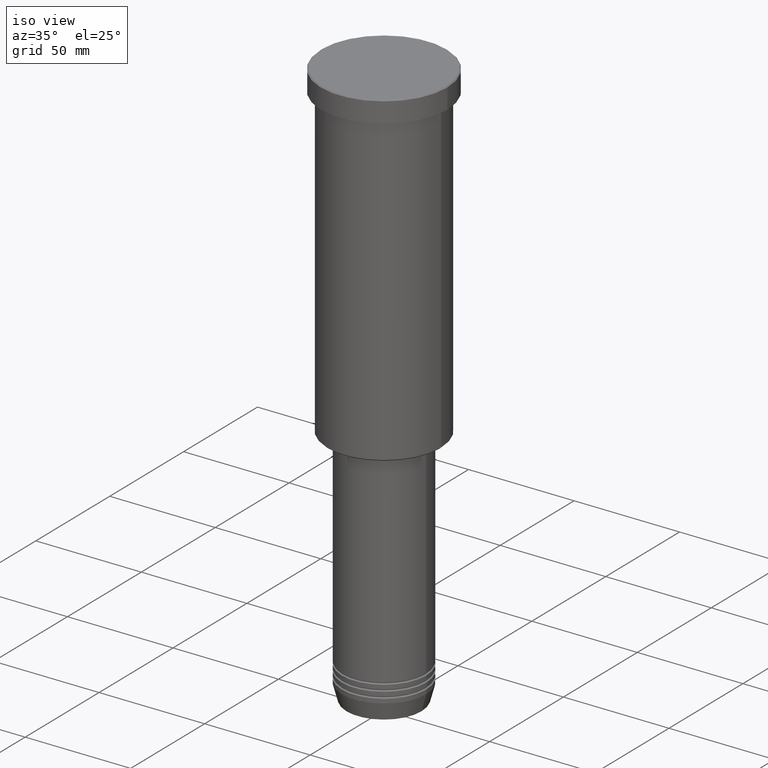
[diagram: clean part render]
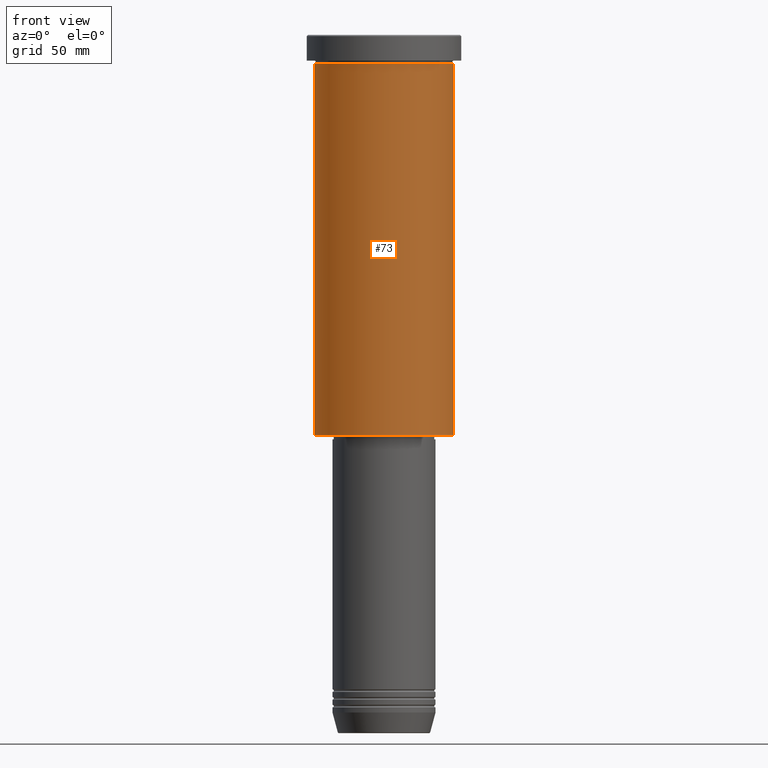
[diagram: tour spotlight — one face highlighted and labeled with its STEP entity id]
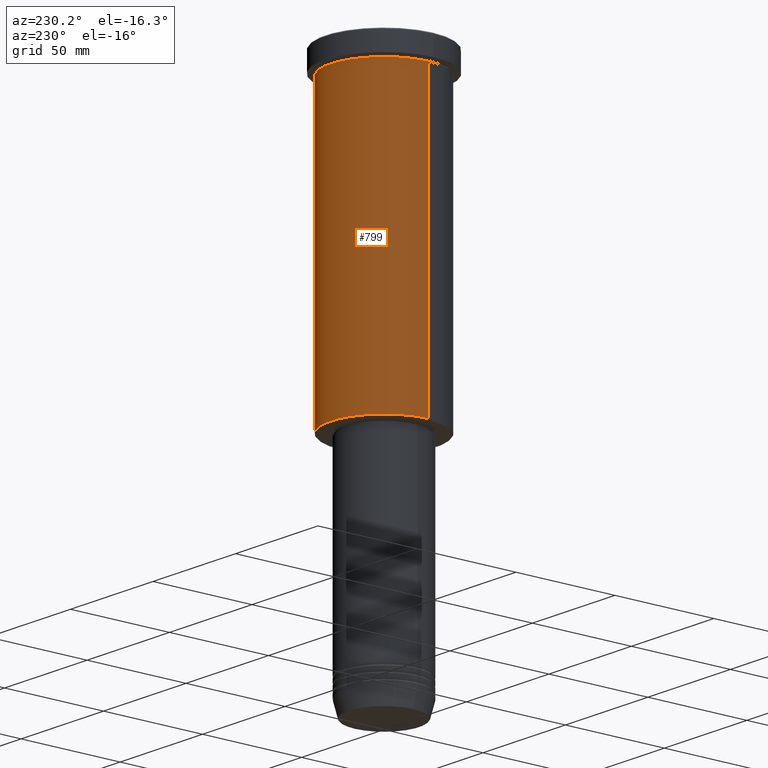
[diagram: tour spotlight — one face highlighted and labeled with its STEP entity id]
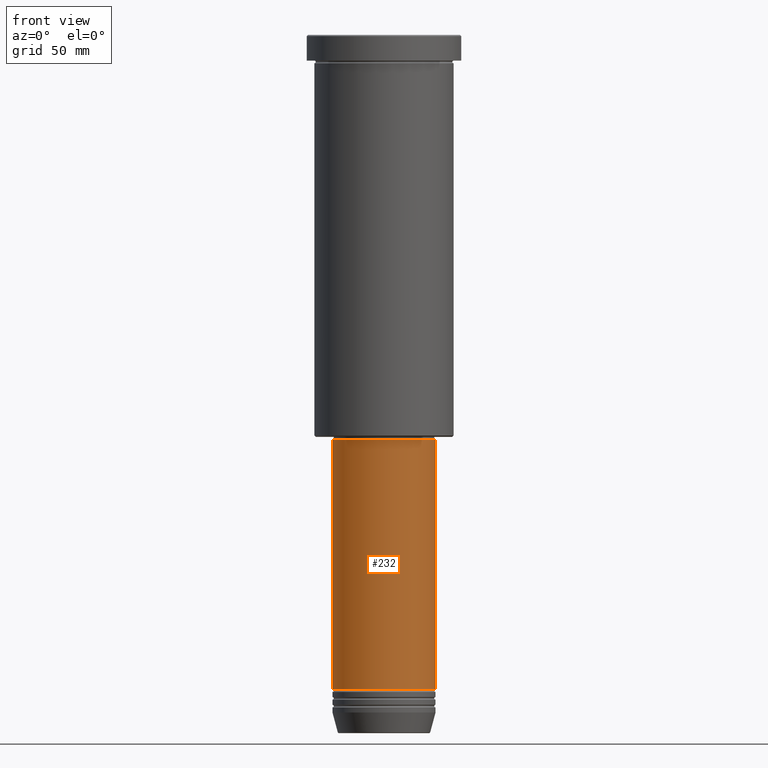
[diagram: tour spotlight — one face highlighted and labeled with its STEP entity id]
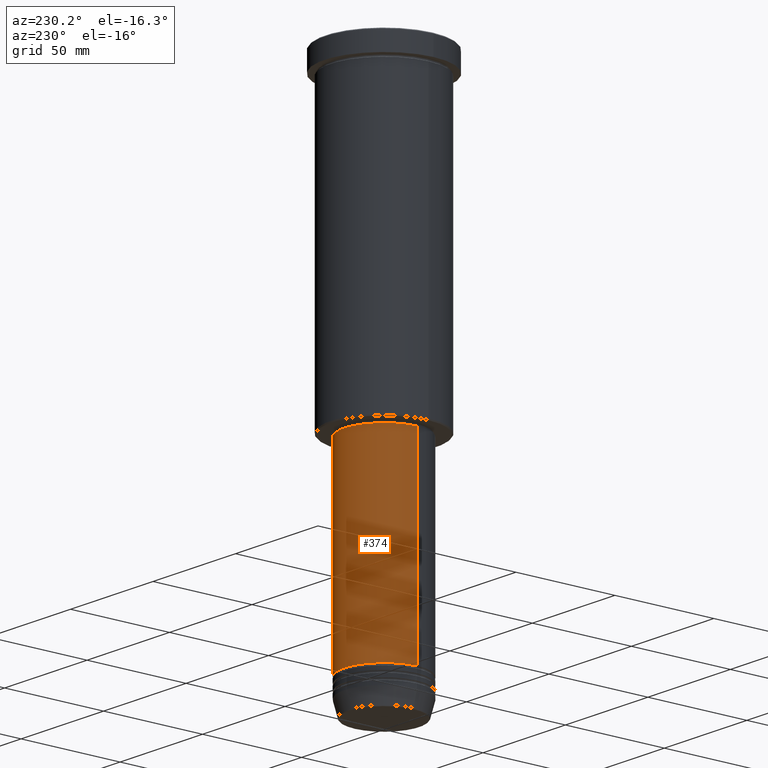
[diagram: tour spotlight — one face highlighted and labeled with its STEP entity id]
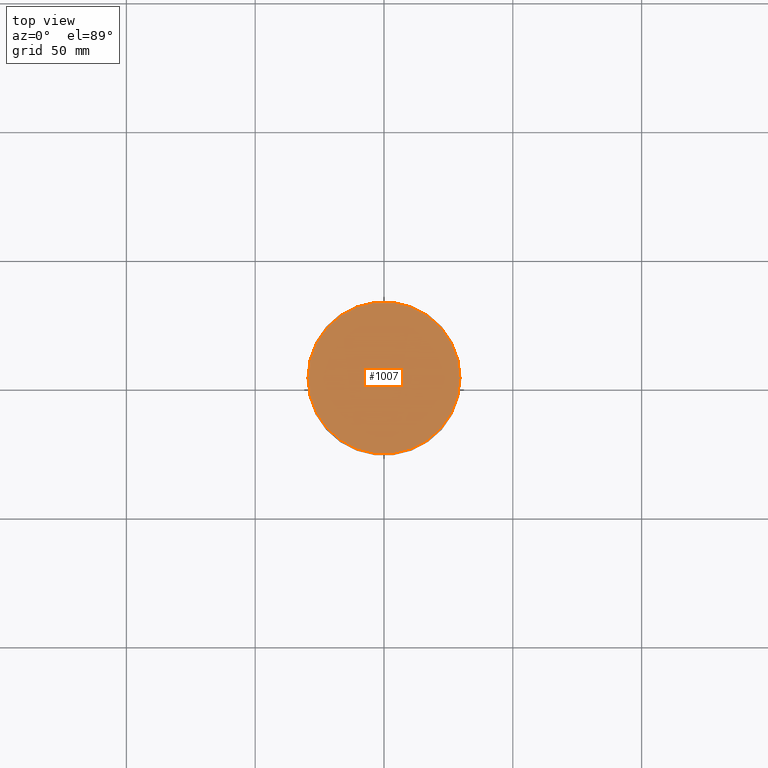
[diagram: tour spotlight — one face highlighted and labeled with its STEP entity id]
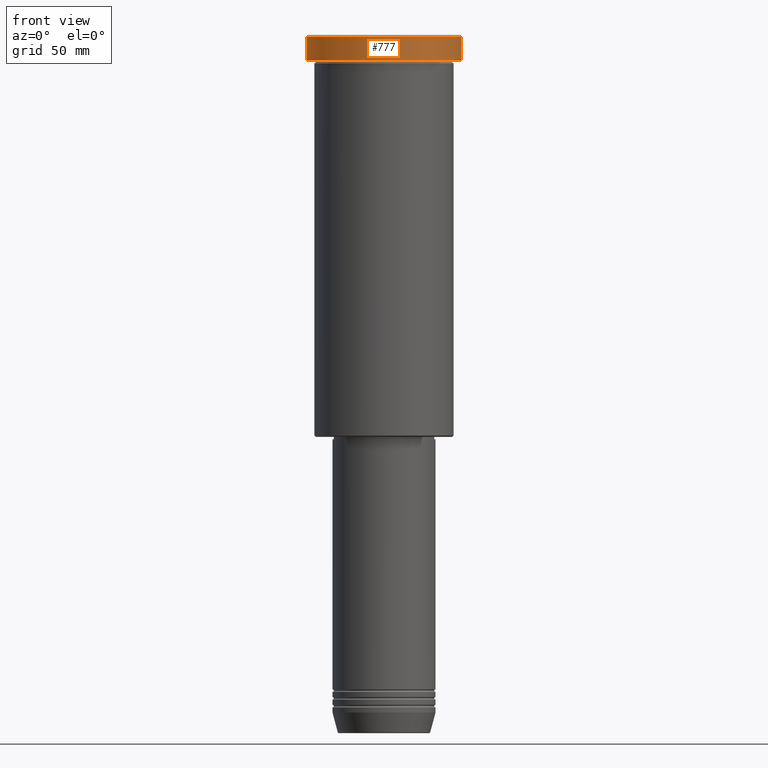
[diagram: tour spotlight — one face highlighted and labeled with its STEP entity id]
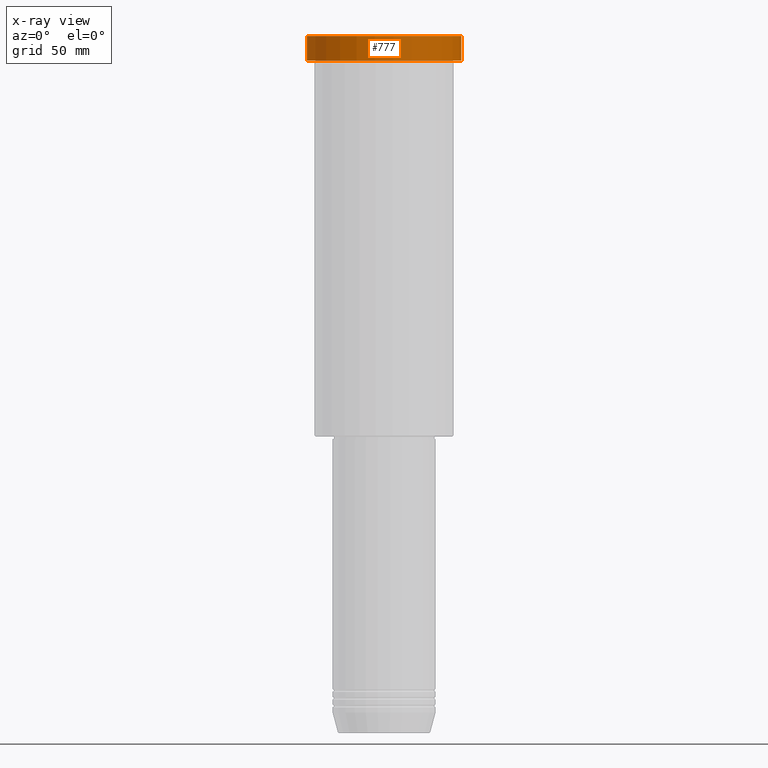
[diagram: x-ray of the same camera — body ghosted, this tour face saturated]
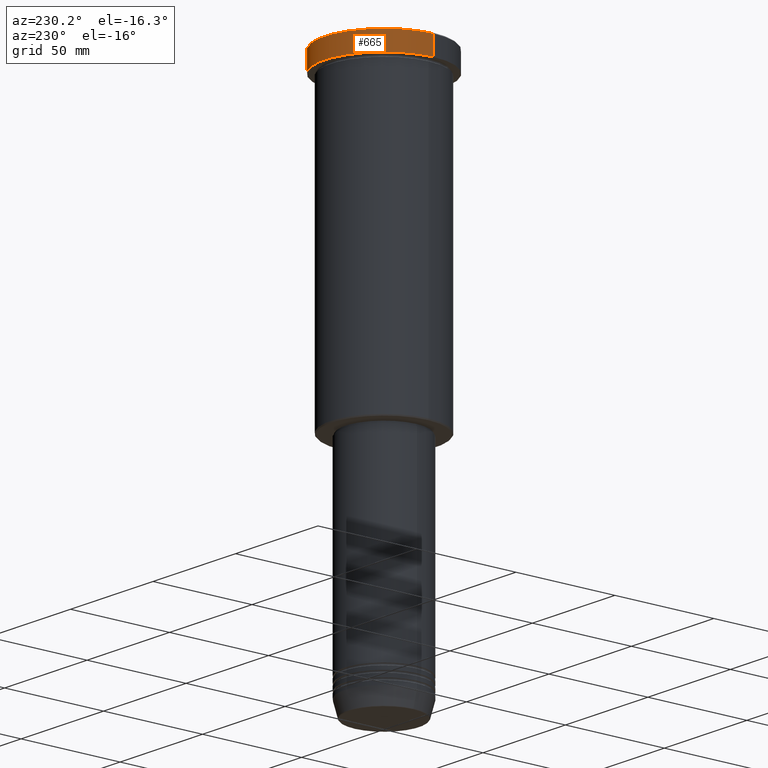
[diagram: tour spotlight — one face highlighted and labeled with its STEP entity id]
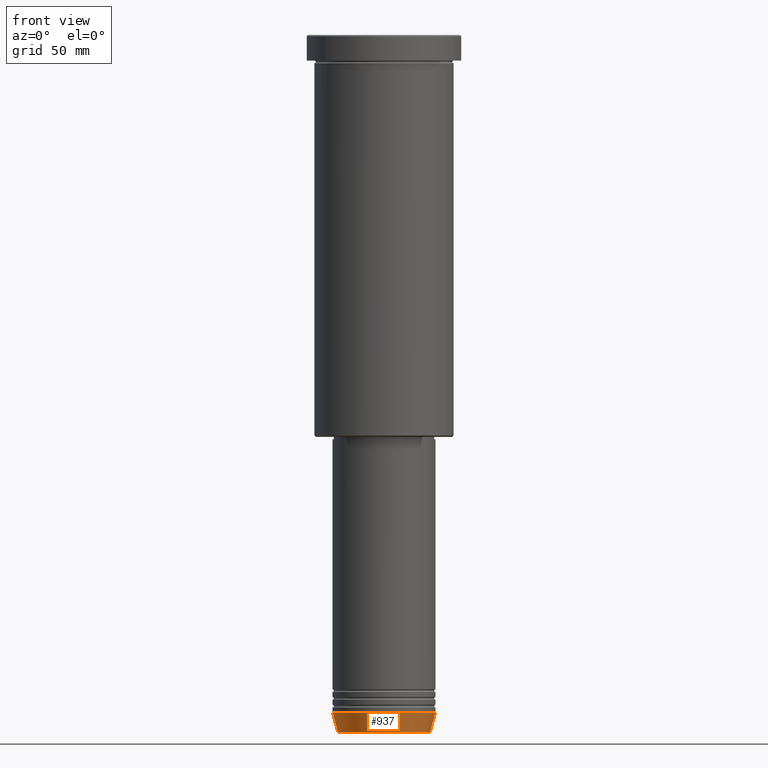
[diagram: tour spotlight — one face highlighted and labeled with its STEP entity id]
A machine part: a face-by-face anatomy tour. The part has 43 B-rep faces; the first image is the clean iso view, then the 8 largest visible faces are spotlighted one at a time (largest first), each with its STEP entity span.

Face 1 — front view, entity #73. In plain terms, the highlighted cylindrical surface (partial cylindrical patch) has radius 27 mm, axis along (-0, -0, 1).
Definition (entity closure, byte-faithful):
#14 = DIRECTION ( 'NONE',  ( 1.000000000000000000, 0.000000000000000000, 0.000000000000000000 ) ) ;
#18 = ORIENTED_EDGE ( 'NONE', *, *, #1065, .F. ) ;
#63 = VERTEX_POINT ( 'NONE', #609 ) ;
#73 = ADVANCED_FACE ( 'NONE', ( #980 ), #868, .T. ) ;
#78 = CARTESIAN_POINT ( 'NONE',  ( -27.00000000000000355, 3.306546357697854128E-15, -155.5000000000000000 ) ) ;
#79 = EDGE_CURVE ( 'NONE', #1001, #491, #775, .T. ) ;
#84 = AXIS2_PLACEMENT_3D ( 'NONE', #694, #1060, #327 ) ;
#200 = CIRCLE ( 'NONE', #864, 27.00000000000000355 ) ;
#205 = CARTESIAN_POINT ( 'NONE',  ( 0.000000000000000000, 0.000000000000000000, -10.99999999999999289 ) ) ;
#322 = CARTESIAN_POINT ( 'NONE',  ( 0.000000000000000000, 0.000000000000000000, -155.5000000000000000 ) ) ;
#327 = DIRECTION ( 'NONE',  ( 1.000000000000000000, 0.000000000000000000, 0.000000000000000000 ) ) ;
#331 = ORIENTED_EDGE ( 'NONE', *, *, #761, .T. ) ;
#383 = DIRECTION ( 'NONE',  ( -0.000000000000000000, -0.000000000000000000, 1.000000000000000000 ) ) ;
#408 = DIRECTION ( 'NONE',  ( -0.000000000000000000, -0.000000000000000000, 1.000000000000000000 ) ) ;
#447 = CARTESIAN_POINT ( 'NONE',  ( 27.00000000000000355, 0.000000000000000000, -10.99999999999999289 ) ) ;
#450 = VECTOR ( 'NONE', #383, 1000.000000000000000 ) ;
#463 = DIRECTION ( 'NONE',  ( -0.000000000000000000, -0.000000000000000000, 1.000000000000000000 ) ) ;
#481 = VERTEX_POINT ( 'NONE', #78 ) ;
#491 = VERTEX_POINT ( 'NONE', #447 ) ;
#496 = DIRECTION ( 'NONE',  ( -1.000000000000000000, 0.000000000000000000, 0.000000000000000000 ) ) ;
#555 = LINE ( 'NONE', #930, #450 ) ;
#609 = CARTESIAN_POINT ( 'NONE',  ( -27.00000000000000355, 3.306546357697854128E-15, -10.99999999999999289 ) ) ;
#611 = CARTESIAN_POINT ( 'NONE',  ( 27.00000000000000355, 0.000000000000000000, -155.5000000000000000 ) ) ;
#660 = CIRCLE ( 'NONE', #1091, 27.00000000000000355 ) ;
#672 = VECTOR ( 'NONE', #780, 1000.000000000000000 ) ;
#694 = CARTESIAN_POINT ( 'NONE',  ( 0.000000000000000000, 0.000000000000000000, 0.000000000000000000 ) ) ;
#700 = EDGE_CURVE ( 'NONE', #63, #491, #200, .T. ) ;
#761 = EDGE_CURVE ( 'NONE', #481, #1001, #660, .T. ) ;
#775 = LINE ( 'NONE', #1162, #672 ) ;
#780 = DIRECTION ( 'NONE',  ( -0.000000000000000000, -0.000000000000000000, 1.000000000000000000 ) ) ;
#850 = ORIENTED_EDGE ( 'NONE', *, *, #700, .F. ) ;
#864 = AXIS2_PLACEMENT_3D ( 'NONE', #205, #463, #14 ) ;
#868 = CYLINDRICAL_SURFACE ( 'NONE', #84, 27.00000000000000355 ) ;
#930 = CARTESIAN_POINT ( 'NONE',  ( -27.00000000000000355, 3.306546357697854128E-15, 0.000000000000000000 ) ) ;
#980 = FACE_OUTER_BOUND ( 'NONE', #1138, .T. ) ;
#982 = ORIENTED_EDGE ( 'NONE', *, *, #79, .T. ) ;
#1001 = VERTEX_POINT ( 'NONE', #611 ) ;
#1060 = DIRECTION ( 'NONE',  ( -0.000000000000000000, -0.000000000000000000, 1.000000000000000000 ) ) ;
#1065 = EDGE_CURVE ( 'NONE', #481, #63, #555, .T. ) ;
#1091 = AXIS2_PLACEMENT_3D ( 'NONE', #322, #408, #496 ) ;
#1138 = EDGE_LOOP ( 'NONE', ( #18, #331, #982, #850 ) ) ;
#1162 = CARTESIAN_POINT ( 'NONE',  ( 27.00000000000000355, 0.000000000000000000, 0.000000000000000000 ) ) ;

Face 2 — auxiliary view, entity #799. In plain terms, the highlighted cylindrical surface (partial cylindrical patch) has radius 27 mm, axis along (-0, -0, 1).
Definition (entity closure, byte-faithful):
#63 = VERTEX_POINT ( 'NONE', #609 ) ;
#78 = CARTESIAN_POINT ( 'NONE',  ( -27.00000000000000355, 3.306546357697854128E-15, -155.5000000000000000 ) ) ;
#79 = EDGE_CURVE ( 'NONE', #1001, #491, #775, .T. ) ;
#167 = AXIS2_PLACEMENT_3D ( 'NONE', #1137, #599, #764 ) ;
#234 = ORIENTED_EDGE ( 'NONE', *, *, #79, .F. ) ;
#235 = AXIS2_PLACEMENT_3D ( 'NONE', #1049, #1149, #333 ) ;
#312 = CYLINDRICAL_SURFACE ( 'NONE', #167, 27.00000000000000355 ) ;
#318 = EDGE_CURVE ( 'NONE', #1001, #481, #1050, .T. ) ;
#333 = DIRECTION ( 'NONE',  ( 1.000000000000000000, 0.000000000000000000, 0.000000000000000000 ) ) ;
#338 = DIRECTION ( 'NONE',  ( -1.000000000000000000, 0.000000000000000000, 0.000000000000000000 ) ) ;
#383 = DIRECTION ( 'NONE',  ( -0.000000000000000000, -0.000000000000000000, 1.000000000000000000 ) ) ;
#392 = ORIENTED_EDGE ( 'NONE', *, *, #413, .F. ) ;
#413 = EDGE_CURVE ( 'NONE', #491, #63, #750, .T. ) ;
#416 = DIRECTION ( 'NONE',  ( -0.000000000000000000, -0.000000000000000000, 1.000000000000000000 ) ) ;
#420 = EDGE_LOOP ( 'NONE', ( #809, #969, #392, #234 ) ) ;
#446 = AXIS2_PLACEMENT_3D ( 'NONE', #516, #416, #338 ) ;
#447 = CARTESIAN_POINT ( 'NONE',  ( 27.00000000000000355, 0.000000000000000000, -10.99999999999999289 ) ) ;
#450 = VECTOR ( 'NONE', #383, 1000.000000000000000 ) ;
#481 = VERTEX_POINT ( 'NONE', #78 ) ;
#491 = VERTEX_POINT ( 'NONE', #447 ) ;
#516 = CARTESIAN_POINT ( 'NONE',  ( 0.000000000000000000, 0.000000000000000000, -155.5000000000000000 ) ) ;
#555 = LINE ( 'NONE', #930, #450 ) ;
#599 = DIRECTION ( 'NONE',  ( -0.000000000000000000, -0.000000000000000000, 1.000000000000000000 ) ) ;
#609 = CARTESIAN_POINT ( 'NONE',  ( -27.00000000000000355, 3.306546357697854128E-15, -10.99999999999999289 ) ) ;
#611 = CARTESIAN_POINT ( 'NONE',  ( 27.00000000000000355, 0.000000000000000000, -155.5000000000000000 ) ) ;
#672 = VECTOR ( 'NONE', #780, 1000.000000000000000 ) ;
#750 = CIRCLE ( 'NONE', #235, 27.00000000000000355 ) ;
#764 = DIRECTION ( 'NONE',  ( 1.000000000000000000, 0.000000000000000000, 0.000000000000000000 ) ) ;
#775 = LINE ( 'NONE', #1162, #672 ) ;
#780 = DIRECTION ( 'NONE',  ( -0.000000000000000000, -0.000000000000000000, 1.000000000000000000 ) ) ;
#799 = ADVANCED_FACE ( 'NONE', ( #860 ), #312, .T. ) ;
#809 = ORIENTED_EDGE ( 'NONE', *, *, #318, .T. ) ;
#860 = FACE_OUTER_BOUND ( 'NONE', #420, .T. ) ;
#930 = CARTESIAN_POINT ( 'NONE',  ( -27.00000000000000355, 3.306546357697854128E-15, 0.000000000000000000 ) ) ;
#969 = ORIENTED_EDGE ( 'NONE', *, *, #1065, .T. ) ;
#1001 = VERTEX_POINT ( 'NONE', #611 ) ;
#1049 = CARTESIAN_POINT ( 'NONE',  ( 0.000000000000000000, 0.000000000000000000, -10.99999999999999289 ) ) ;
#1050 = CIRCLE ( 'NONE', #446, 27.00000000000000355 ) ;
#1065 = EDGE_CURVE ( 'NONE', #481, #63, #555, .T. ) ;
#1137 = CARTESIAN_POINT ( 'NONE',  ( 0.000000000000000000, 0.000000000000000000, 0.000000000000000000 ) ) ;
#1149 = DIRECTION ( 'NONE',  ( -0.000000000000000000, -0.000000000000000000, 1.000000000000000000 ) ) ;
#1162 = CARTESIAN_POINT ( 'NONE',  ( 27.00000000000000355, 0.000000000000000000, 0.000000000000000000 ) ) ;

Face 3 — front view, entity #232. In plain terms, the highlighted cylindrical surface (partial cylindrical patch) has radius 20 mm, axis along (-0, -0, 1).
Definition (entity closure, byte-faithful):
#10 = DIRECTION ( 'NONE',  ( -0.000000000000000000, -0.000000000000000000, 1.000000000000000000 ) ) ;
#22 = EDGE_CURVE ( 'NONE', #488, #179, #121, .T. ) ;
#72 = ORIENTED_EDGE ( 'NONE', *, *, #22, .F. ) ;
#89 = CYLINDRICAL_SURFACE ( 'NONE', #989, 20.00000000000000000 ) ;
#121 = CIRCLE ( 'NONE', #784, 20.00000000000000000 ) ;
#132 = EDGE_CURVE ( 'NONE', #300, #179, #645, .T. ) ;
#147 = EDGE_CURVE ( 'NONE', #211, #488, #729, .T. ) ;
#171 = CARTESIAN_POINT ( 'NONE',  ( -20.00000000000000000, 2.449293598294706513E-15, -157.0000000000000000 ) ) ;
#173 = FACE_OUTER_BOUND ( 'NONE', #208, .T. ) ;
#179 = VERTEX_POINT ( 'NONE', #811 ) ;
#184 = DIRECTION ( 'NONE',  ( 1.000000000000000000, 0.000000000000000000, 0.000000000000000000 ) ) ;
#208 = EDGE_LOOP ( 'NONE', ( #671, #305, #1062, #72 ) ) ;
#211 = VERTEX_POINT ( 'NONE', #724 ) ;
#232 = ADVANCED_FACE ( 'NONE', ( #173 ), #89, .T. ) ;
#300 = VERTEX_POINT ( 'NONE', #324 ) ;
#305 = ORIENTED_EDGE ( 'NONE', *, *, #867, .T. ) ;
#324 = CARTESIAN_POINT ( 'NONE',  ( 20.00000000000000000, 0.000000000000000000, -254.0000000000000000 ) ) ;
#346 = DIRECTION ( 'NONE',  ( -0.000000000000000000, -0.000000000000000000, 1.000000000000000000 ) ) ;
#348 = DIRECTION ( 'NONE',  ( -0.000000000000000000, -0.000000000000000000, 1.000000000000000000 ) ) ;
#369 = VECTOR ( 'NONE', #1090, 1000.000000000000000 ) ;
#460 = CARTESIAN_POINT ( 'NONE',  ( 20.00000000000000000, 0.000000000000000000, 0.000000000000000000 ) ) ;
#488 = VERTEX_POINT ( 'NONE', #171 ) ;
#645 = LINE ( 'NONE', #460, #863 ) ;
#671 = ORIENTED_EDGE ( 'NONE', *, *, #147, .F. ) ;
#713 = DIRECTION ( 'NONE',  ( 1.000000000000000000, 0.000000000000000000, 0.000000000000000000 ) ) ;
#724 = CARTESIAN_POINT ( 'NONE',  ( -20.00000000000000000, 2.449293598294706513E-15, -254.0000000000000000 ) ) ;
#729 = LINE ( 'NONE', #985, #369 ) ;
#784 = AXIS2_PLACEMENT_3D ( 'NONE', #1168, #346, #713 ) ;
#811 = CARTESIAN_POINT ( 'NONE',  ( 20.00000000000000000, 0.000000000000000000, -157.0000000000000000 ) ) ;
#863 = VECTOR ( 'NONE', #10, 1000.000000000000000 ) ;
#867 = EDGE_CURVE ( 'NONE', #211, #300, #923, .T. ) ;
#923 = CIRCLE ( 'NONE', #1093, 20.00000000000000000 ) ;
#985 = CARTESIAN_POINT ( 'NONE',  ( -20.00000000000000000, 2.449293598294706513E-15, 0.000000000000000000 ) ) ;
#989 = AXIS2_PLACEMENT_3D ( 'NONE', #1175, #991, #184 ) ;
#991 = DIRECTION ( 'NONE',  ( -0.000000000000000000, -0.000000000000000000, 1.000000000000000000 ) ) ;
#1062 = ORIENTED_EDGE ( 'NONE', *, *, #132, .T. ) ;
#1084 = DIRECTION ( 'NONE',  ( 1.000000000000000000, 0.000000000000000000, 0.000000000000000000 ) ) ;
#1090 = DIRECTION ( 'NONE',  ( -0.000000000000000000, -0.000000000000000000, 1.000000000000000000 ) ) ;
#1093 = AXIS2_PLACEMENT_3D ( 'NONE', #1177, #348, #1084 ) ;
#1168 = CARTESIAN_POINT ( 'NONE',  ( 0.000000000000000000, 0.000000000000000000, -157.0000000000000000 ) ) ;
#1175 = CARTESIAN_POINT ( 'NONE',  ( 0.000000000000000000, 0.000000000000000000, 0.000000000000000000 ) ) ;
#1177 = CARTESIAN_POINT ( 'NONE',  ( 0.000000000000000000, 0.000000000000000000, -254.0000000000000000 ) ) ;

Face 4 — auxiliary view, entity #374. In plain terms, the highlighted cylindrical surface (partial cylindrical patch) has radius 20 mm, axis along (-0, -0, 1).
Definition (entity closure, byte-faithful):
#7 = CIRCLE ( 'NONE', #273, 20.00000000000000000 ) ;
#10 = DIRECTION ( 'NONE',  ( -0.000000000000000000, -0.000000000000000000, 1.000000000000000000 ) ) ;
#65 = CYLINDRICAL_SURFACE ( 'NONE', #1109, 20.00000000000000000 ) ;
#127 = AXIS2_PLACEMENT_3D ( 'NONE', #1157, #606, #964 ) ;
#130 = ORIENTED_EDGE ( 'NONE', *, *, #815, .T. ) ;
#132 = EDGE_CURVE ( 'NONE', #300, #179, #645, .T. ) ;
#147 = EDGE_CURVE ( 'NONE', #211, #488, #729, .T. ) ;
#150 = ORIENTED_EDGE ( 'NONE', *, *, #276, .F. ) ;
#171 = CARTESIAN_POINT ( 'NONE',  ( -20.00000000000000000, 2.449293598294706513E-15, -157.0000000000000000 ) ) ;
#179 = VERTEX_POINT ( 'NONE', #811 ) ;
#211 = VERTEX_POINT ( 'NONE', #724 ) ;
#227 = DIRECTION ( 'NONE',  ( 1.000000000000000000, 0.000000000000000000, 0.000000000000000000 ) ) ;
#231 = FACE_OUTER_BOUND ( 'NONE', #1019, .T. ) ;
#250 = CARTESIAN_POINT ( 'NONE',  ( 0.000000000000000000, 0.000000000000000000, 0.000000000000000000 ) ) ;
#273 = AXIS2_PLACEMENT_3D ( 'NONE', #704, #319, #227 ) ;
#276 = EDGE_CURVE ( 'NONE', #179, #488, #7, .T. ) ;
#300 = VERTEX_POINT ( 'NONE', #324 ) ;
#319 = DIRECTION ( 'NONE',  ( -0.000000000000000000, -0.000000000000000000, 1.000000000000000000 ) ) ;
#324 = CARTESIAN_POINT ( 'NONE',  ( 20.00000000000000000, 0.000000000000000000, -254.0000000000000000 ) ) ;
#369 = VECTOR ( 'NONE', #1090, 1000.000000000000000 ) ;
#374 = ADVANCED_FACE ( 'NONE', ( #231 ), #65, .T. ) ;
#460 = CARTESIAN_POINT ( 'NONE',  ( 20.00000000000000000, 0.000000000000000000, 0.000000000000000000 ) ) ;
#488 = VERTEX_POINT ( 'NONE', #171 ) ;
#528 = ORIENTED_EDGE ( 'NONE', *, *, #132, .F. ) ;
#606 = DIRECTION ( 'NONE',  ( -0.000000000000000000, -0.000000000000000000, 1.000000000000000000 ) ) ;
#645 = LINE ( 'NONE', #460, #863 ) ;
#704 = CARTESIAN_POINT ( 'NONE',  ( 0.000000000000000000, 0.000000000000000000, -157.0000000000000000 ) ) ;
#724 = CARTESIAN_POINT ( 'NONE',  ( -20.00000000000000000, 2.449293598294706513E-15, -254.0000000000000000 ) ) ;
#729 = LINE ( 'NONE', #985, #369 ) ;
#811 = CARTESIAN_POINT ( 'NONE',  ( 20.00000000000000000, 0.000000000000000000, -157.0000000000000000 ) ) ;
#815 = EDGE_CURVE ( 'NONE', #300, #211, #1174, .T. ) ;
#856 = DIRECTION ( 'NONE',  ( 1.000000000000000000, 0.000000000000000000, 0.000000000000000000 ) ) ;
#863 = VECTOR ( 'NONE', #10, 1000.000000000000000 ) ;
#952 = ORIENTED_EDGE ( 'NONE', *, *, #147, .T. ) ;
#964 = DIRECTION ( 'NONE',  ( 1.000000000000000000, 0.000000000000000000, 0.000000000000000000 ) ) ;
#985 = CARTESIAN_POINT ( 'NONE',  ( -20.00000000000000000, 2.449293598294706513E-15, 0.000000000000000000 ) ) ;
#1019 = EDGE_LOOP ( 'NONE', ( #130, #952, #150, #528 ) ) ;
#1090 = DIRECTION ( 'NONE',  ( -0.000000000000000000, -0.000000000000000000, 1.000000000000000000 ) ) ;
#1109 = AXIS2_PLACEMENT_3D ( 'NONE', #250, #1139, #856 ) ;
#1139 = DIRECTION ( 'NONE',  ( -0.000000000000000000, -0.000000000000000000, 1.000000000000000000 ) ) ;
#1157 = CARTESIAN_POINT ( 'NONE',  ( 0.000000000000000000, 0.000000000000000000, -254.0000000000000000 ) ) ;
#1174 = CIRCLE ( 'NONE', #127, 20.00000000000000000 ) ;

Face 5 — top view, entity #1007. In plain terms, the highlighted planar face has unit normal (0, -0, 1).
Definition (entity closure, byte-faithful):
#94 = DIRECTION ( 'NONE',  ( -0.000000000000000000, -0.000000000000000000, 1.000000000000000000 ) ) ;
#99 = DIRECTION ( 'NONE',  ( 1.000000000000000000, 0.000000000000000000, 0.000000000000000000 ) ) ;
#116 = DIRECTION ( 'NONE',  ( 1.000000000000000000, 0.000000000000000000, 0.000000000000000000 ) ) ;
#213 = ORIENTED_EDGE ( 'NONE', *, *, #590, .T. ) ;
#238 = VERTEX_POINT ( 'NONE', #913 ) ;
#242 = EDGE_CURVE ( 'NONE', #1056, #238, #919, .T. ) ;
#307 = AXIS2_PLACEMENT_3D ( 'NONE', #487, #759, #1023 ) ;
#424 = EDGE_LOOP ( 'NONE', ( #213, #512 ) ) ;
#433 = CARTESIAN_POINT ( 'NONE',  ( 0.000000000000000000, 0.000000000000000000, 0.000000000000000000 ) ) ;
#482 = AXIS2_PLACEMENT_3D ( 'NONE', #908, #94, #99 ) ;
#487 = CARTESIAN_POINT ( 'NONE',  ( 0.000000000000000000, 0.000000000000000000, 0.000000000000000000 ) ) ;
#512 = ORIENTED_EDGE ( 'NONE', *, *, #242, .T. ) ;
#520 = FACE_OUTER_BOUND ( 'NONE', #424, .T. ) ;
#590 = EDGE_CURVE ( 'NONE', #238, #1056, #940, .T. ) ;
#759 = DIRECTION ( 'NONE',  ( -0.000000000000000000, -0.000000000000000000, 1.000000000000000000 ) ) ;
#834 = CARTESIAN_POINT ( 'NONE',  ( 29.50000000000002487, 3.643324227463376968E-15, 0.000000000000000000 ) ) ;
#887 = PLANE ( 'NONE',  #905 ) ;
#905 = AXIS2_PLACEMENT_3D ( 'NONE', #433, #1098, #116 ) ;
#908 = CARTESIAN_POINT ( 'NONE',  ( 0.000000000000000000, 0.000000000000000000, 0.000000000000000000 ) ) ;
#913 = CARTESIAN_POINT ( 'NONE',  ( -29.50000000000002487, 0.000000000000000000, 0.000000000000000000 ) ) ;
#919 = CIRCLE ( 'NONE', #482, 29.50000000000002487 ) ;
#940 = CIRCLE ( 'NONE', #307, 29.50000000000002487 ) ;
#1007 = ADVANCED_FACE ( 'NONE', ( #520 ), #887, .T. ) ;
#1023 = DIRECTION ( 'NONE',  ( 1.000000000000000000, 0.000000000000000000, 0.000000000000000000 ) ) ;
#1056 = VERTEX_POINT ( 'NONE', #834 ) ;
#1098 = DIRECTION ( 'NONE',  ( 0.000000000000000000, -0.000000000000000000, 1.000000000000000000 ) ) ;

Face 6 — front view, entity #777. An x-ray twin of the same camera follows (body ghosted, this face saturated) — the face is partly hidden behind the body. In plain terms, the highlighted cylindrical surface (partial cylindrical patch) has radius 30 mm, axis along (-0, -0, 1).
Definition (entity closure, byte-faithful):
#8 = EDGE_CURVE ( 'NONE', #401, #758, #557, .T. ) ;
#41 = AXIS2_PLACEMENT_3D ( 'NONE', #168, #526, #701 ) ;
#53 = CARTESIAN_POINT ( 'NONE',  ( -30.00000000000000000, 3.673940397442059178E-15, -9.999999999999992895 ) ) ;
#155 = CARTESIAN_POINT ( 'NONE',  ( 0.000000000000000000, 0.000000000000000000, -0.4999999999999796274 ) ) ;
#168 = CARTESIAN_POINT ( 'NONE',  ( 0.000000000000000000, 0.000000000000000000, -9.999999999999992895 ) ) ;
#296 = CARTESIAN_POINT ( 'NONE',  ( -30.00000000000000000, 3.673940397442059178E-15, 0.000000000000000000 ) ) ;
#385 = LINE ( 'NONE', #296, #1151 ) ;
#387 = AXIS2_PLACEMENT_3D ( 'NONE', #155, #425, #696 ) ;
#399 = VERTEX_POINT ( 'NONE', #421 ) ;
#400 = DIRECTION ( 'NONE',  ( -0.000000000000000000, -0.000000000000000000, 1.000000000000000000 ) ) ;
#401 = VERTEX_POINT ( 'NONE', #53 ) ;
#418 = VERTEX_POINT ( 'NONE', #699 ) ;
#421 = CARTESIAN_POINT ( 'NONE',  ( -30.00000000000000000, 3.673940397442059178E-15, -0.4999999999999796274 ) ) ;
#425 = DIRECTION ( 'NONE',  ( 0.000000000000000000, 0.000000000000000000, -1.000000000000000000 ) ) ;
#494 = EDGE_CURVE ( 'NONE', #758, #418, #727, .T. ) ;
#513 = CARTESIAN_POINT ( 'NONE',  ( 30.00000000000000000, 0.000000000000000000, -9.999999999999992895 ) ) ;
#526 = DIRECTION ( 'NONE',  ( -0.000000000000000000, -0.000000000000000000, 1.000000000000000000 ) ) ;
#557 = CIRCLE ( 'NONE', #41, 30.00000000000000000 ) ;
#577 = CIRCLE ( 'NONE', #387, 30.00000000000000000 ) ;
#587 = CYLINDRICAL_SURFACE ( 'NONE', #1114, 30.00000000000000000 ) ;
#591 = ORIENTED_EDGE ( 'NONE', *, *, #8, .T. ) ;
#610 = EDGE_CURVE ( 'NONE', #401, #399, #385, .T. ) ;
#644 = CARTESIAN_POINT ( 'NONE',  ( 30.00000000000000000, 0.000000000000000000, 0.000000000000000000 ) ) ;
#669 = ORIENTED_EDGE ( 'NONE', *, *, #610, .F. ) ;
#688 = FACE_OUTER_BOUND ( 'NONE', #1111, .T. ) ;
#696 = DIRECTION ( 'NONE',  ( 1.000000000000000000, 0.000000000000000000, 0.000000000000000000 ) ) ;
#699 = CARTESIAN_POINT ( 'NONE',  ( 30.00000000000000000, 0.000000000000000000, -0.4999999999999796274 ) ) ;
#701 = DIRECTION ( 'NONE',  ( 1.000000000000000000, 0.000000000000000000, 0.000000000000000000 ) ) ;
#727 = LINE ( 'NONE', #644, #883 ) ;
#728 = EDGE_CURVE ( 'NONE', #418, #399, #577, .T. ) ;
#741 = DIRECTION ( 'NONE',  ( -0.000000000000000000, -0.000000000000000000, 1.000000000000000000 ) ) ;
#758 = VERTEX_POINT ( 'NONE', #513 ) ;
#771 = ORIENTED_EDGE ( 'NONE', *, *, #494, .T. ) ;
#777 = ADVANCED_FACE ( 'NONE', ( #688 ), #587, .T. ) ;
#883 = VECTOR ( 'NONE', #1002, 1000.000000000000000 ) ;
#948 = DIRECTION ( 'NONE',  ( 1.000000000000000000, 0.000000000000000000, 0.000000000000000000 ) ) ;
#1002 = DIRECTION ( 'NONE',  ( -0.000000000000000000, -0.000000000000000000, 1.000000000000000000 ) ) ;
#1047 = CARTESIAN_POINT ( 'NONE',  ( 0.000000000000000000, 0.000000000000000000, 0.000000000000000000 ) ) ;
#1064 = ORIENTED_EDGE ( 'NONE', *, *, #728, .T. ) ;
#1111 = EDGE_LOOP ( 'NONE', ( #669, #591, #771, #1064 ) ) ;
#1114 = AXIS2_PLACEMENT_3D ( 'NONE', #1047, #400, #948 ) ;
#1151 = VECTOR ( 'NONE', #741, 1000.000000000000000 ) ;

Face 7 — auxiliary view, entity #665. In plain terms, the highlighted cylindrical surface (partial cylindrical patch) has radius 30 mm, axis along (-0, -0, 1).
Definition (entity closure, byte-faithful):
#28 = CYLINDRICAL_SURFACE ( 'NONE', #257, 30.00000000000000000 ) ;
#53 = CARTESIAN_POINT ( 'NONE',  ( -30.00000000000000000, 3.673940397442059178E-15, -9.999999999999992895 ) ) ;
#135 = DIRECTION ( 'NONE',  ( 0.000000000000000000, 0.000000000000000000, -1.000000000000000000 ) ) ;
#237 = CIRCLE ( 'NONE', #902, 30.00000000000000000 ) ;
#243 = ORIENTED_EDGE ( 'NONE', *, *, #708, .T. ) ;
#257 = AXIS2_PLACEMENT_3D ( 'NONE', #827, #391, #290 ) ;
#286 = CARTESIAN_POINT ( 'NONE',  ( 0.000000000000000000, 0.000000000000000000, -9.999999999999992895 ) ) ;
#290 = DIRECTION ( 'NONE',  ( 1.000000000000000000, 0.000000000000000000, 0.000000000000000000 ) ) ;
#296 = CARTESIAN_POINT ( 'NONE',  ( -30.00000000000000000, 3.673940397442059178E-15, 0.000000000000000000 ) ) ;
#384 = ORIENTED_EDGE ( 'NONE', *, *, #494, .F. ) ;
#385 = LINE ( 'NONE', #296, #1151 ) ;
#391 = DIRECTION ( 'NONE',  ( -0.000000000000000000, -0.000000000000000000, 1.000000000000000000 ) ) ;
#399 = VERTEX_POINT ( 'NONE', #421 ) ;
#401 = VERTEX_POINT ( 'NONE', #53 ) ;
#418 = VERTEX_POINT ( 'NONE', #699 ) ;
#421 = CARTESIAN_POINT ( 'NONE',  ( -30.00000000000000000, 3.673940397442059178E-15, -0.4999999999999796274 ) ) ;
#494 = EDGE_CURVE ( 'NONE', #758, #418, #727, .T. ) ;
#513 = CARTESIAN_POINT ( 'NONE',  ( 30.00000000000000000, 0.000000000000000000, -9.999999999999992895 ) ) ;
#541 = AXIS2_PLACEMENT_3D ( 'NONE', #880, #135, #1055 ) ;
#610 = EDGE_CURVE ( 'NONE', #401, #399, #385, .T. ) ;
#644 = CARTESIAN_POINT ( 'NONE',  ( 30.00000000000000000, 0.000000000000000000, 0.000000000000000000 ) ) ;
#665 = ADVANCED_FACE ( 'NONE', ( #916 ), #28, .T. ) ;
#699 = CARTESIAN_POINT ( 'NONE',  ( 30.00000000000000000, 0.000000000000000000, -0.4999999999999796274 ) ) ;
#708 = EDGE_CURVE ( 'NONE', #758, #401, #237, .T. ) ;
#727 = LINE ( 'NONE', #644, #883 ) ;
#737 = EDGE_CURVE ( 'NONE', #399, #418, #1051, .T. ) ;
#741 = DIRECTION ( 'NONE',  ( -0.000000000000000000, -0.000000000000000000, 1.000000000000000000 ) ) ;
#746 = DIRECTION ( 'NONE',  ( -0.000000000000000000, -0.000000000000000000, 1.000000000000000000 ) ) ;
#758 = VERTEX_POINT ( 'NONE', #513 ) ;
#827 = CARTESIAN_POINT ( 'NONE',  ( 0.000000000000000000, 0.000000000000000000, 0.000000000000000000 ) ) ;
#880 = CARTESIAN_POINT ( 'NONE',  ( 0.000000000000000000, 0.000000000000000000, -0.4999999999999796274 ) ) ;
#883 = VECTOR ( 'NONE', #1002, 1000.000000000000000 ) ;
#902 = AXIS2_PLACEMENT_3D ( 'NONE', #286, #746, #1101 ) ;
#915 = ORIENTED_EDGE ( 'NONE', *, *, #737, .T. ) ;
#916 = FACE_OUTER_BOUND ( 'NONE', #1120, .T. ) ;
#1002 = DIRECTION ( 'NONE',  ( -0.000000000000000000, -0.000000000000000000, 1.000000000000000000 ) ) ;
#1051 = CIRCLE ( 'NONE', #541, 30.00000000000000000 ) ;
#1055 = DIRECTION ( 'NONE',  ( 1.000000000000000000, 0.000000000000000000, 0.000000000000000000 ) ) ;
#1101 = DIRECTION ( 'NONE',  ( 1.000000000000000000, 0.000000000000000000, 0.000000000000000000 ) ) ;
#1120 = EDGE_LOOP ( 'NONE', ( #243, #1127, #915, #384 ) ) ;
#1127 = ORIENTED_EDGE ( 'NONE', *, *, #610, .T. ) ;
#1151 = VECTOR ( 'NONE', #741, 1000.000000000000000 ) ;

Face 8 — front view, entity #937. In plain terms, the highlighted conical surface has half-angle 15 deg.
Definition (entity closure, byte-faithful):
#47 = CONICAL_SURFACE ( 'NONE', #466, 20.00000000000000000, 0.2617993877991499629 ) ;
#100 = CARTESIAN_POINT ( 'NONE',  ( -17.95570587970607690, 2.324116685748021371E-15, -270.6294095225512706 ) ) ;
#102 = DIRECTION ( 'NONE',  ( 1.000000000000000000, 0.000000000000000000, 0.000000000000000000 ) ) ;
#124 = ORIENTED_EDGE ( 'NONE', *, *, #895, .F. ) ;
#140 = AXIS2_PLACEMENT_3D ( 'NONE', #1039, #685, #157 ) ;
#156 = ORIENTED_EDGE ( 'NONE', *, *, #309, .F. ) ;
#157 = DIRECTION ( 'NONE',  ( 1.000000000000000000, 0.000000000000000000, 0.000000000000000000 ) ) ;
#195 = DIRECTION ( 'NONE',  ( 0.2588190451025212391, 0.000000000000000000, 0.9659258262890680902 ) ) ;
#228 = CARTESIAN_POINT ( 'NONE',  ( 20.00000000000000000, 0.000000000000000000, -263.0000000000000000 ) ) ;
#289 = VERTEX_POINT ( 'NONE', #506 ) ;
#309 = EDGE_CURVE ( 'NONE', #836, #1170, #634, .T. ) ;
#323 = EDGE_LOOP ( 'NONE', ( #124, #935, #726, #156 ) ) ;
#375 = LINE ( 'NONE', #646, #1154 ) ;
#438 = CARTESIAN_POINT ( 'NONE',  ( -20.00000000000000000, 2.449293598294706513E-15, -263.0000000000000000 ) ) ;
#448 = CIRCLE ( 'NONE', #1112, 17.95570587970607690 ) ;
#466 = AXIS2_PLACEMENT_3D ( 'NONE', #533, #993, #909 ) ;
#504 = CARTESIAN_POINT ( 'NONE',  ( -20.00000000000000000, 2.449293598294706513E-15, -263.0000000000000000 ) ) ;
#506 = CARTESIAN_POINT ( 'NONE',  ( 17.95570587970607690, 0.000000000000000000, -270.6294095225512706 ) ) ;
#533 = CARTESIAN_POINT ( 'NONE',  ( 0.000000000000000000, 0.000000000000000000, -263.0000000000000000 ) ) ;
#632 = FACE_OUTER_BOUND ( 'NONE', #323, .T. ) ;
#634 = CIRCLE ( 'NONE', #140, 20.00000000000000000 ) ;
#646 = CARTESIAN_POINT ( 'NONE',  ( 20.00000000000000000, 0.000000000000000000, -263.0000000000000000 ) ) ;
#654 = CARTESIAN_POINT ( 'NONE',  ( 0.000000000000000000, 0.000000000000000000, -270.6294095225512706 ) ) ;
#685 = DIRECTION ( 'NONE',  ( -0.000000000000000000, -0.000000000000000000, 1.000000000000000000 ) ) ;
#691 = EDGE_CURVE ( 'NONE', #1037, #289, #448, .T. ) ;
#726 = ORIENTED_EDGE ( 'NONE', *, *, #1152, .T. ) ;
#836 = VERTEX_POINT ( 'NONE', #504 ) ;
#895 = EDGE_CURVE ( 'NONE', #1037, #836, #903, .T. ) ;
#903 = LINE ( 'NONE', #438, #1071 ) ;
#909 = DIRECTION ( 'NONE',  ( 1.000000000000000000, 0.000000000000000000, 0.000000000000000000 ) ) ;
#935 = ORIENTED_EDGE ( 'NONE', *, *, #691, .T. ) ;
#937 = ADVANCED_FACE ( 'NONE', ( #632 ), #47, .T. ) ;
#986 = DIRECTION ( 'NONE',  ( -0.2588190451025212391, 3.169619151431771721E-17, 0.9659258262890680902 ) ) ;
#993 = DIRECTION ( 'NONE',  ( -0.000000000000000000, -0.000000000000000000, 1.000000000000000000 ) ) ;
#1014 = DIRECTION ( 'NONE',  ( -0.000000000000000000, -0.000000000000000000, 1.000000000000000000 ) ) ;
#1037 = VERTEX_POINT ( 'NONE', #100 ) ;
#1039 = CARTESIAN_POINT ( 'NONE',  ( 0.000000000000000000, 0.000000000000000000, -263.0000000000000000 ) ) ;
#1071 = VECTOR ( 'NONE', #986, 1000.000000000000114 ) ;
#1112 = AXIS2_PLACEMENT_3D ( 'NONE', #654, #1014, #102 ) ;
#1152 = EDGE_CURVE ( 'NONE', #289, #1170, #375, .T. ) ;
#1154 = VECTOR ( 'NONE', #195, 1000.000000000000114 ) ;
#1170 = VERTEX_POINT ( 'NONE', #228 ) ;